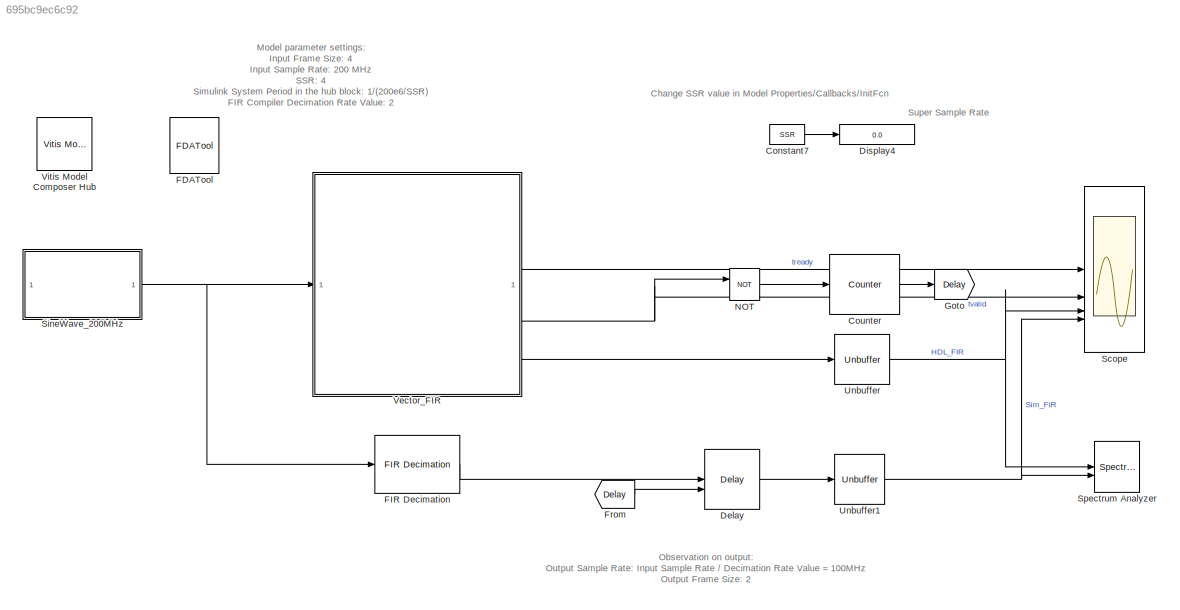
MODEL slx_695bc9ec6c92
KIND model
CONFIG AbsTol = auto
CONFIG EnableMultiTasking = off
CONFIG FixedStep = auto
CONFIG InitFcn = SSR = 4;\n
CONFIG MaxStep = auto
CONFIG MinStep = auto
CONFIG RelTol = 1e-3
CONFIG SampleTimeConstraint = Unconstrained
CONFIG SolverName = VariableStepAuto
CONFIG StartTime = 0.0
CONFIG StopTime = 1000
BLOCK [Constant] Constant7
  OutDataTypeStr = int32
  SampleTime = -1
  Value = SSR
BLOCK [Reference] Counter  REF=dspswit3/Counter
  SourceBlock = dspswit3/Counter
  SourceType = Counter
BLOCK [Delay] Delay
  DelayLengthSource = Input port
  DelayLengthUpperLimit = 1000
  InputPortMap = u0,p1
BLOCK [Display] Display4
  Decimation = 1
BLOCK [Reference] FDATool  REF=hdlUtilities/FDATool
  SourceBlock = hdlUtilities/FDATool
  SourceType = Xilinx FDATool Interface Block
  UserDataPersistent = on
BLOCK [Reference] FIR Decimation  REF=dspmlti4/FIR
Decimation
  SourceBlock = dspmlti4/FIR\nDecimation
  SourceType = FIR Decimation
  UserDataPersistent = on
BLOCK [From] From
  GotoTag = Delay
BLOCK [Goto] Goto
  GotoTag = Delay
BLOCK [Logic] NOT
  AllPortsSameDT = off
  IconShape = distinctive
  Operator = NOT
  OutDataTypeStr = boolean
BLOCK [Scope] Scope
  Floating = off
  NumInputPorts = 4
  ScopeSpecificationString = Simulink.scopes.TimeScopeBlockCfg('CurrentConfiguration', extmgr.ConfigurationSet(extmgr.Configuration('Core','General UI',true,'DisplayFullSourceName',false,'ShowMainToolbar',true),extmgr.Configuration('Sources','WiredSimulink',true,'DataLogging',false,'DataLoggingVariableName','ScopeData','DataLoggingLimitDataPoints',false,'DataLoggingMaxPoints','5000','DataLoggingDecimateData',false,'DataLoggin...<+3569ch>
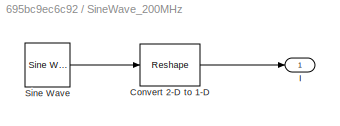
BLOCK [SubSystem] SineWave_200MHz
BLOCK [Reshape] SineWave_200MHz/Convert 2-D to 1-D
BLOCK [Outport] SineWave_200MHz/I
BLOCK [Reference] SineWave_200MHz/Sine Wave  REF=dspsrcs4/Sine Wave
  SourceBlock = dspsrcs4/Sine Wave
  SourceType = Sine Wave
BLOCK [SpectrumAnalyzer] Spectrum Analyzer
  GraphicalSettings = {"GraphicalSettings":{"Style":{"BackgroundColor":[0.12941176470588237,0.12941176470588237,0.12941176470588237],"AxesColor":[0.070588235294117646,0.070588235294117646,0.070588235294117646],"LabelsColor":[0.85098039215686272,0.85098039215686272,0.85098039215686272],"PreserveColors":false,"Visible":[true,true],"LineStyle":["-","-"],"LineWidth":[1.5,1.5],"BarWidth":[0.9,0.9],"LineColor":[[1,0.90980392...<+1098ch>
  NumInputPorts = 2
  ScopeFrameLocation = window
  Span = 100000000
  StartFrequency = -50000000
  StopFrequency = 50000000
  Visible = on
  WasSavedAsWebScope = on
  WindowPosition = [1438.000000,398.000000,800.000000,500.000000,]
  YLimits = [-57.02719475,31.35659426]
BLOCK [Unbuffer] Unbuffer
BLOCK [Unbuffer] Unbuffer1
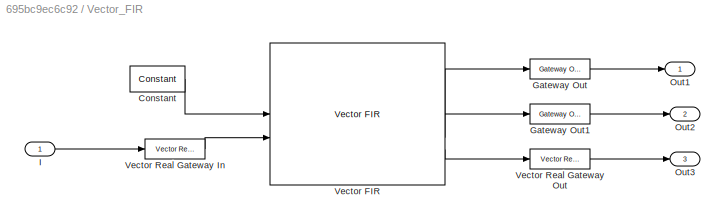
BLOCK [SubSystem] Vector_FIR
BLOCK [Reference] Vector_FIR/Constant  REF=hdlBasic/Constant
  SourceBlock = hdlBasic/Constant
  SourceType = Constant Block Block
BLOCK [Reference] Vector_FIR/Gateway Out  REF=hdlBasic/Gateway Out
  SourceBlock = hdlBasic/Gateway Out
  SourceType = Gateway Out Block
BLOCK [Reference] Vector_FIR/Gateway Out1  REF=hdlBasic/Gateway Out
  SourceBlock = hdlBasic/Gateway Out
  SourceType = Gateway Out Block
BLOCK [Inport] Vector_FIR/I
BLOCK [Outport] Vector_FIR/Out1
BLOCK [Outport] Vector_FIR/Out2
  Port = 2
BLOCK [Outport] Vector_FIR/Out3
  Port = 3
BLOCK [Reference] Vector_FIR/Vector FIR  REF=hdlSSR/Vector FIR
  SourceBlock = hdlSSR/Vector FIR
  SourceType = Xilinx Vector FIR Compiler 7.2 Block
BLOCK [Reference] Vector_FIR/Vector Real Gateway In  REF=hdlSSR/Vector Real Gateway In
  SourceBlock = hdlSSR/Vector Real Gateway In
  SourceType = Xilinx Vector Gateway In Block
BLOCK [Reference] Vector_FIR/Vector Real Gateway Out  REF=hdlSSR/Vector Real Gateway Out
  SourceBlock = hdlSSR/Vector Real Gateway Out
  SourceType = Xilinx Vector Gateway Out Block
BLOCK [Reference] Vitis Model Composer Hub  REF=vmcUtilities/Vitis Model Composer Hub
  SourceBlock = vmcUtilities/Vitis Model Composer Hub
  SourceType = VMC Hub
  Tag = genX
  UserDataPersistent = on
ANNOTATION (root): Model parameter settings: Input Frame Size: 4 Input Sample Rate: 200 MHz SSR: 4 Simulink System Period in the hub block: 1/(200e6/SSR) FIR Compiler Decimation Rate Value: 2
ANNOTATION (root): Observation on output: Output Sample Rate: Input Sample Rate / Decimation Rate Value = 100MHz Output Frame Size: 2
ANNOTATION (root): Change SSR value in Model Properties/Callbacks/InitFcn
ANNOTATION (root): Super Sample Rate
LINE Constant7:1 -> Display4:1
LINE Counter:1 -> Goto:1
LINE Delay:1 -> Unbuffer1:1
LINE FIR Decimation:1 -> Delay:1
LINE From:1 -> Delay:2
LINE NOT:1 -> Counter:1
LINE SineWave_200MHz/Convert 2-D to 1-D:1 -> SineWave_200MHz/I:1
LINE SineWave_200MHz/Sine Wave:1 -> SineWave_200MHz/Convert 2-D to 1-D:1
NET SineWave_200MHz:1 -> FIR Decimation:1, Vector_FIR:1
NET Unbuffer1:1 -> Scope:4, Spectrum Analyzer:2
NET Unbuffer:1 -> Scope:3, Spectrum Analyzer:1
LINE Vector_FIR/Constant:1 -> Vector_FIR/Vector FIR:1
LINE Vector_FIR/Gateway Out1:1 -> Vector_FIR/Out2:1
LINE Vector_FIR/Gateway Out:1 -> Vector_FIR/Out1:1
LINE Vector_FIR/I:1 -> Vector_FIR/Vector Real Gateway In:1
LINE Vector_FIR/Vector FIR:1 -> Vector_FIR/Gateway Out:1
LINE Vector_FIR/Vector FIR:2 -> Vector_FIR/Gateway Out1:1
LINE Vector_FIR/Vector FIR:3 -> Vector_FIR/Vector Real Gateway Out:1
LINE Vector_FIR/Vector Real Gateway In:1 -> Vector_FIR/Vector FIR:2
LINE Vector_FIR/Vector Real Gateway Out:1 -> Vector_FIR/Out3:1
LINE Vector_FIR:1 -> Scope:1
NET Vector_FIR:2 -> NOT:1, Scope:2
LINE Vector_FIR:3 -> Unbuffer:1
note: NET lines group one-source signal fan-out (src -> all destinations, sorted); 1:1 wires keep LINE
